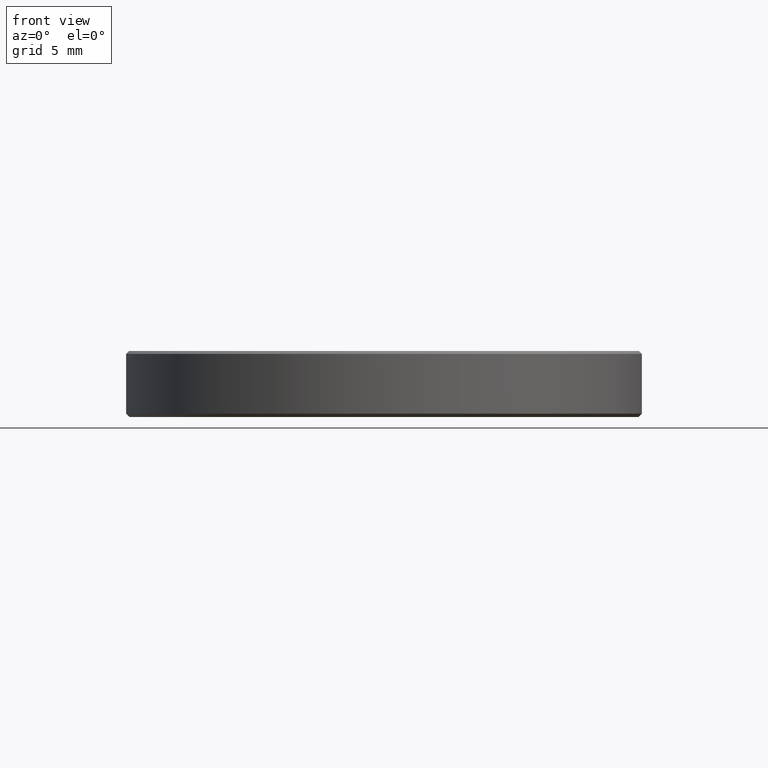
[diagram: clean part render]
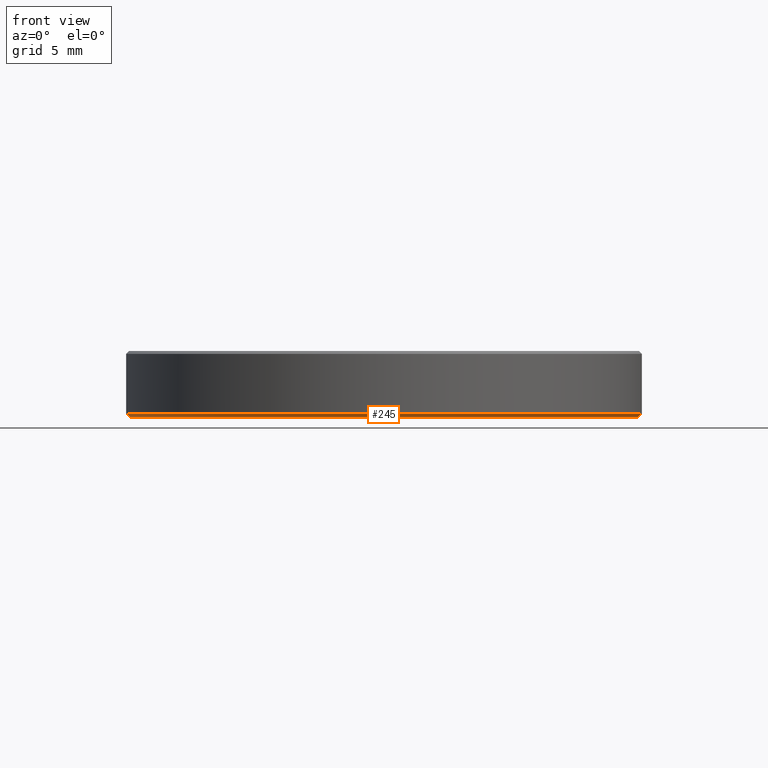
[diagram: same view with one face highlighted and labeled with its STEP entity id]
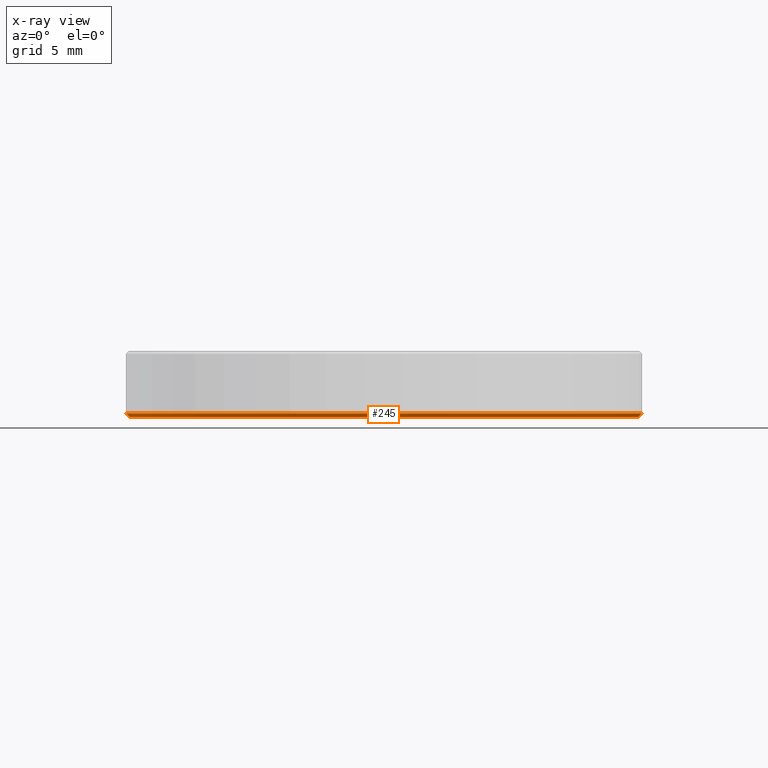
[diagram: x-ray of the same camera — body ghosted, the highlighted face saturated]
A machine part, front view. The second image highlights one B-rep face of the part: STEP entity #245.
The next image is the same camera in x-ray: the body ghosted, the highlighted face saturated — about 0% of this face is hidden behind the body in this view.
In plain terms, the highlighted conical surface has half-angle 45 deg.
Its self-contained STEP definition (entity closure, byte-faithful):
#9 = CARTESIAN_POINT ( 'NONE',  ( 15.00000000000000000, 0.000000000000000000, 0.2000000000000031197 ) ) ;
#12 = CIRCLE ( 'NONE', #67, 15.00000000000000000 ) ;
#13 = DIRECTION ( 'NONE',  ( 0.000000000000000000, 0.000000000000000000, -1.000000000000000000 ) ) ;
#22 = VERTEX_POINT ( 'NONE', #126 ) ;
#39 = CARTESIAN_POINT ( 'NONE',  ( 14.79999999999999538, 0.000000000000000000, 9.184850993605147944E-16 ) ) ;
#50 = CIRCLE ( 'NONE', #195, 14.79999999999999538 ) ;
#61 = FACE_OUTER_BOUND ( 'NONE', #222, .T. ) ;
#64 = VECTOR ( 'NONE', #160, 1000.000000000000114 ) ;
#66 = ORIENTED_EDGE ( 'NONE', *, *, #107, .T. ) ;
#67 = AXIS2_PLACEMENT_3D ( 'NONE', #136, #196, #104 ) ;
#70 = ORIENTED_EDGE ( 'NONE', *, *, #139, .F. ) ;
#75 = CARTESIAN_POINT ( 'NONE',  ( 0.000000000000000000, 0.000000000000000000, 9.184850993605147944E-16 ) ) ;
#81 = LINE ( 'NONE', #105, #64 ) ;
#85 = ORIENTED_EDGE ( 'NONE', *, *, #184, .F. ) ;
#99 = DIRECTION ( 'NONE',  ( 0.7071067811865506814, 0.000000000000000000, 0.7071067811865443531 ) ) ;
#104 = DIRECTION ( 'NONE',  ( 1.000000000000000000, 0.000000000000000000, 0.000000000000000000 ) ) ;
#105 = CARTESIAN_POINT ( 'NONE',  ( -15.00000000000000000, 1.836970198721029589E-15, 0.2000000000000031197 ) ) ;
#107 = EDGE_CURVE ( 'NONE', #210, #244, #177, .T. ) ;
#126 = CARTESIAN_POINT ( 'NONE',  ( -14.79999999999999538, 1.824723730729555837E-15, 9.184850993605147944E-16 ) ) ;
#129 = VECTOR ( 'NONE', #99, 1000.000000000000114 ) ;
#136 = CARTESIAN_POINT ( 'NONE',  ( 0.000000000000000000, 0.000000000000000000, 0.2000000000000031197 ) ) ;
#139 = EDGE_CURVE ( 'NONE', #210, #22, #50, .T. ) ;
#145 = ORIENTED_EDGE ( 'NONE', *, *, #221, .F. ) ;
#160 = DIRECTION ( 'NONE',  ( -0.7071067811865506814, 8.659560562354969836E-17, 0.7071067811865443531 ) ) ;
#163 = CARTESIAN_POINT ( 'NONE',  ( -15.00000000000000000, 1.836970198721029589E-15, 0.2000000000000031197 ) ) ;
#177 = LINE ( 'NONE', #9, #129 ) ;
#180 = CARTESIAN_POINT ( 'NONE',  ( 15.00000000000000000, 0.000000000000000000, 0.2000000000000031197 ) ) ;
#184 = EDGE_CURVE ( 'NONE', #22, #187, #81, .T. ) ;
#187 = VERTEX_POINT ( 'NONE', #163 ) ;
#191 = CONICAL_SURFACE ( 'NONE', #258, 15.00000000000000000, 0.7853981633974528309 ) ;
#195 = AXIS2_PLACEMENT_3D ( 'NONE', #75, #13, #233 ) ;
#196 = DIRECTION ( 'NONE',  ( -0.000000000000000000, -0.000000000000000000, 1.000000000000000000 ) ) ;
#210 = VERTEX_POINT ( 'NONE', #39 ) ;
#220 = CARTESIAN_POINT ( 'NONE',  ( 0.000000000000000000, 0.000000000000000000, 0.2000000000000031197 ) ) ;
#221 = EDGE_CURVE ( 'NONE', #187, #244, #12, .T. ) ;
#222 = EDGE_LOOP ( 'NONE', ( #85, #70, #66, #145 ) ) ;
#233 = DIRECTION ( 'NONE',  ( 1.000000000000000000, 0.000000000000000000, 0.000000000000000000 ) ) ;
#244 = VERTEX_POINT ( 'NONE', #180 ) ;
#245 = ADVANCED_FACE ( 'NONE', ( #61 ), #191, .T. ) ;
#256 = DIRECTION ( 'NONE',  ( 1.000000000000000000, 0.000000000000000000, 0.000000000000000000 ) ) ;
#258 = AXIS2_PLACEMENT_3D ( 'NONE', #220, #259, #256 ) ;
#259 = DIRECTION ( 'NONE',  ( -0.000000000000000000, -0.000000000000000000, 1.000000000000000000 ) ) ;